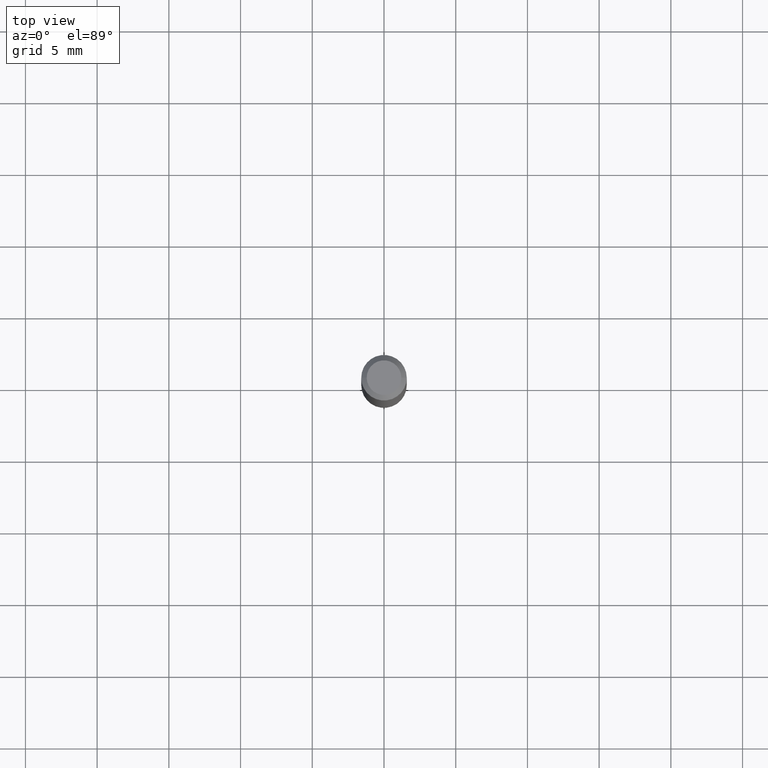
[diagram: clean part render]
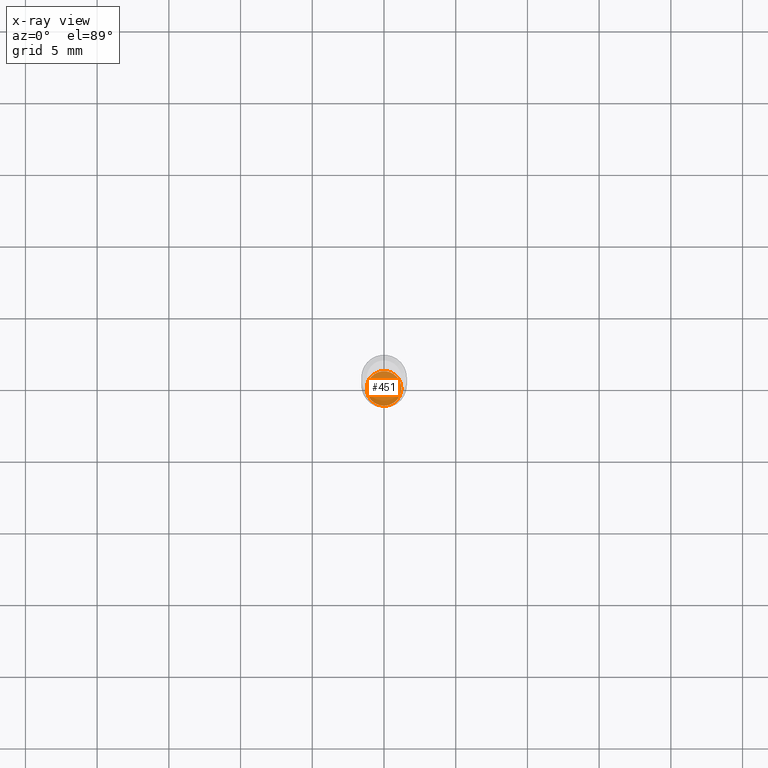
[diagram: x-ray — body ghosted, one internal face saturated and labeled with its STEP entity id]
A machine part, top view, then the same camera in x-ray: the body is ghosted and one INTERNAL B-rep face — a face not visible from any outside direction — is saturated and labeled: STEP entity #451.
In plain terms, the highlighted planar face has unit normal (-0, 0, 1).
Its self-contained STEP definition (entity closure, byte-faithful):
#8 = CARTESIAN_POINT ( 'NONE',  ( 4.193979002607509757E-29, -5.987890496115994688E-15, -1.715000000000000080 ) ) ;
#52 = FACE_OUTER_BOUND ( 'NONE', #408, .T. ) ;
#55 = CARTESIAN_POINT ( 'NONE',  ( 4.193979002607509757E-29, -5.987890496115994688E-15, -1.715000000000000080 ) ) ;
#81 = EDGE_CURVE ( 'NONE', #101, #455, #112, .T. ) ;
#97 = DIRECTION ( 'NONE',  ( -2.445468806185136597E-29, 3.491481338843145583E-15, 1.000000000000000000 ) ) ;
#101 = VERTEX_POINT ( 'NONE', #326 ) ;
#106 = DIRECTION ( 'NONE',  ( 1.000000000000000000, -6.982962677686261977E-15, 0.000000000000000000 ) ) ;
#111 = AXIS2_PLACEMENT_3D ( 'NONE', #55, #492, #365 ) ;
#112 = CIRCLE ( 'NONE', #393, 0.04749999999999999362 ) ;
#210 = ORIENTED_EDGE ( 'NONE', *, *, #390, .F. ) ;
#235 = ORIENTED_EDGE ( 'NONE', *, *, #81, .F. ) ;
#244 = PLANE ( 'NONE',  #433 ) ;
#248 = CARTESIAN_POINT ( 'NONE',  ( 3.316907271901395178E-16, 0.04749999999999401229, -1.715000000000000524 ) ) ;
#326 = CARTESIAN_POINT ( 'NONE',  ( 0.04750000000000000749, -6.319581223306092988E-15, -1.715000000000000080 ) ) ;
#333 = DIRECTION ( 'NONE',  ( 1.000000000000000000, -6.982962677686265922E-15, 4.876176775795935793E-29 ) ) ;
#343 = DIRECTION ( 'NONE',  ( -2.438088387897960049E-29, 3.491481338843145188E-15, 1.000000000000000000 ) ) ;
#365 = DIRECTION ( 'NONE',  ( 1.000000000000000000, -6.982962677686261977E-15, 0.000000000000000000 ) ) ;
#387 = CIRCLE ( 'NONE', #111, 0.04749999999999999362 ) ;
#390 = EDGE_CURVE ( 'NONE', #455, #101, #387, .T. ) ;
#393 = AXIS2_PLACEMENT_3D ( 'NONE', #8, #97, #106 ) ;
#408 = EDGE_LOOP ( 'NONE', ( #235, #210 ) ) ;
#420 = CARTESIAN_POINT ( 'NONE',  ( -0.04750000000000000749, -5.650382696629947194E-15, -1.715000000000000080 ) ) ;
#433 = AXIS2_PLACEMENT_3D ( 'NONE', #248, #343, #333 ) ;
#451 = ADVANCED_FACE ( 'NONE', ( #52 ), #244, .F. ) ;
#455 = VERTEX_POINT ( 'NONE', #420 ) ;
#492 = DIRECTION ( 'NONE',  ( -2.445468806185136597E-29, 3.491481338843145583E-15, 1.000000000000000000 ) ) ;